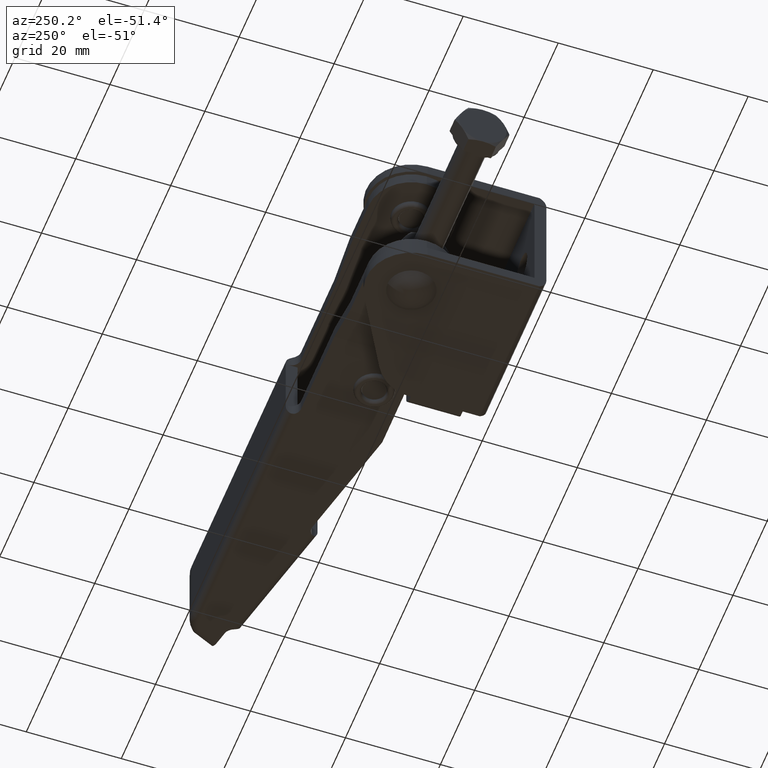
[diagram: clean part render]
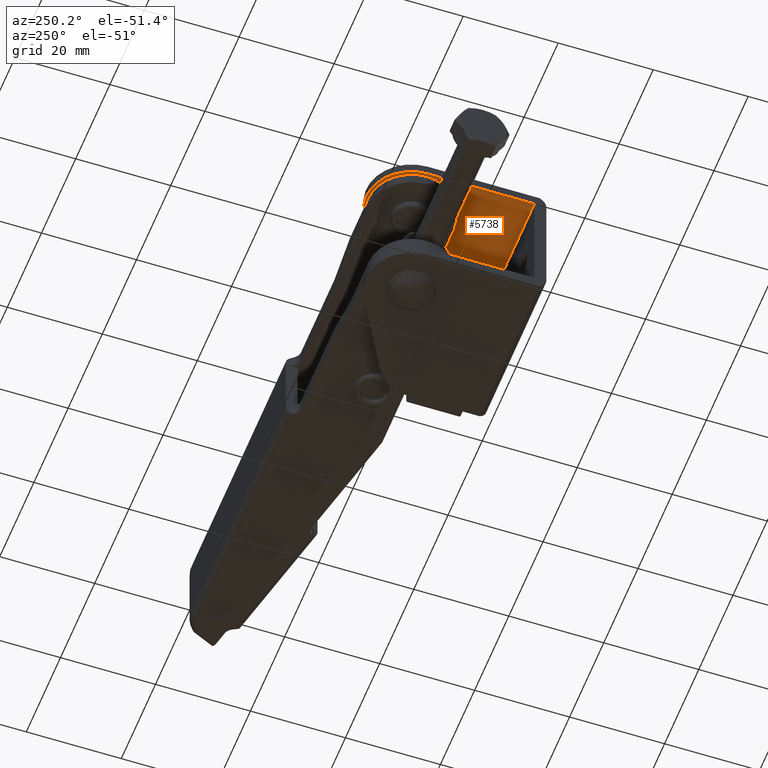
[diagram: same view with one face highlighted and labeled with its STEP entity id]
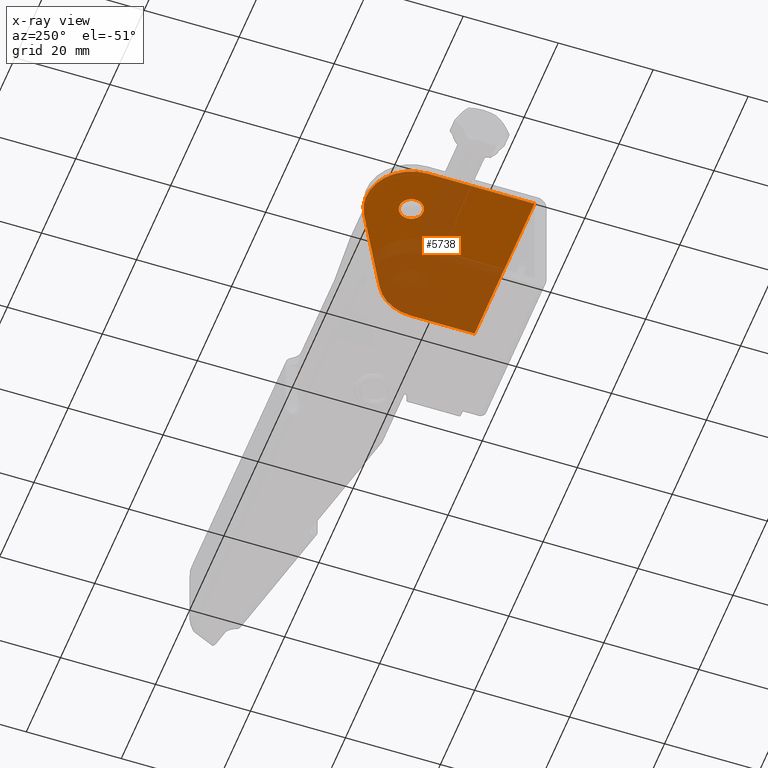
[diagram: x-ray of the same camera — body ghosted, the highlighted face saturated]
A machine part, auxiliary view. The second image highlights one B-rep face of the part: STEP entity #5738.
The next image is the same camera in x-ray: the body ghosted, the highlighted face saturated — about 54% of this face is hidden behind the body in this view.
In plain terms, the highlighted planar face has unit normal (0, 0, -1).
Its self-contained STEP definition (entity closure, byte-faithful):
#52 = DIRECTION ( 'NONE',  ( 0.0000000000000000000, 1.000000000000000000, 0.0000000000000000000 ) ) ;
#236 = EDGE_CURVE ( 'NONE', #5387, #5748, #2113, .T. ) ;
#424 = CARTESIAN_POINT ( 'NONE',  ( -3.342518234999997800, 33.27996761635693400, 11.75000000000000000 ) ) ;
#491 = DIRECTION ( 'NONE',  ( -9.130123557772667100E-017, -0.0000000000000000000, -1.000000000000000000 ) ) ;
#538 = VERTEX_POINT ( 'NONE', #1478 ) ;
#656 = EDGE_CURVE ( 'NONE', #4357, #1506, #1167, .T. ) ;
#725 = PLANE ( 'NONE',  #5575 ) ;
#738 = VECTOR ( 'NONE', #5046, 1000.000000000000000 ) ;
#824 = VERTEX_POINT ( 'NONE', #1712 ) ;
#940 = EDGE_CURVE ( 'NONE', #6481, #4407, #2720, .T. ) ;
#1167 = CIRCLE ( 'NONE', #5828, 2.500000000000000400 ) ;
#1225 = DIRECTION ( 'NONE',  ( -9.130123557772667100E-017, -0.0000000000000000000, -1.000000000000000000 ) ) ;
#1261 = ORIENTED_EDGE ( 'NONE', *, *, #1824, .F. ) ;
#1478 = CARTESIAN_POINT ( 'NONE',  ( 17.50000000000000000, 2.509999999997949000, 11.75000000000000000 ) ) ;
#1506 = VERTEX_POINT ( 'NONE', #6193 ) ;
#1519 = DIRECTION ( 'NONE',  ( 0.8715755365716635300, -0.4902612406154670000, 0.0000000000000000000 ) ) ;
#1520 = AXIS2_PLACEMENT_3D ( 'NONE', #1898, #5731, #2446 ) ;
#1693 = FACE_BOUND ( 'NONE', #4901, .T. ) ;
#1712 = CARTESIAN_POINT ( 'NONE',  ( 17.50000000000000000, 15.99999999902575900, 11.75000000000000000 ) ) ;
#1824 = EDGE_CURVE ( 'NONE', #5387, #538, #5125, .T. ) ;
#1898 = CARTESIAN_POINT ( 'NONE',  ( -8.000000000000000000, 25.00000000000000000, 11.75000000000000000 ) ) ;
#2021 = CARTESIAN_POINT ( 'NONE',  ( -17.50000000000000000, 2.509999999997949000, 11.75000000000000000 ) ) ;
#2113 = LINE ( 'NONE', #3077, #6323 ) ;
#2117 = VECTOR ( 'NONE', #3377, 1000.000000000000000 ) ;
#2446 = DIRECTION ( 'NONE',  ( -1.000000000000000000, 0.0000000000000000000, 0.0000000000000000000 ) ) ;
#2453 = CARTESIAN_POINT ( 'NONE',  ( -8.000000000000000000, 25.00000000000000000, 11.75000000000000000 ) ) ;
#2663 = CARTESIAN_POINT ( 'NONE',  ( 17.50000000000000000, 18.60097000000000000, 11.75000000000000000 ) ) ;
#2720 = LINE ( 'NONE', #424, #3490 ) ;
#2791 = CARTESIAN_POINT ( 'NONE',  ( -3.342518217038310500, 33.27996760295001600, 11.75000000000000000 ) ) ;
#2829 = CARTESIAN_POINT ( 'NONE',  ( 17.50000000000000000, 4.999999992330360900, 11.75000000000000000 ) ) ;
#2839 = CARTESIAN_POINT ( 'NONE',  ( 17.50000000000000000, 18.60097000000000000, 11.75000000000000000 ) ) ;
#2939 = DIRECTION ( 'NONE',  ( 0.0000000000000000000, 1.000000000000000000, 0.0000000000000000000 ) ) ;
#3014 = DIRECTION ( 'NONE',  ( -1.000000000000000000, 0.0000000000000000000, 0.0000000000000000000 ) ) ;
#3077 = CARTESIAN_POINT ( 'NONE',  ( -17.50000000000000000, 18.60097000000000000, 11.75000000000000000 ) ) ;
#3177 = ORIENTED_EDGE ( 'NONE', *, *, #6548, .T. ) ;
#3377 = DIRECTION ( 'NONE',  ( -0.0000000000000000000, -1.000000000000000000, -0.0000000000000000000 ) ) ;
#3485 = CARTESIAN_POINT ( 'NONE',  ( -17.50000000000000000, 24.99999999817272200, 11.75000000000000000 ) ) ;
#3490 = VECTOR ( 'NONE', #1519, 1000.000000000000100 ) ;
#3500 = CARTESIAN_POINT ( 'NONE',  ( -10.50000000000000000, 25.00000000000000000, 11.75000000000000000 ) ) ;
#3662 = EDGE_CURVE ( 'NONE', #1506, #4357, #6192, .T. ) ;
#3693 = AXIS2_PLACEMENT_3D ( 'NONE', #4515, #1225, #5064 ) ;
#3767 = CARTESIAN_POINT ( 'NONE',  ( -8.000000000000000000, 25.00000000000000000, 11.75000000000000000 ) ) ;
#4079 = CARTESIAN_POINT ( 'NONE',  ( 12.65748177635507900, 24.27996759449335700, 11.75000000000000000 ) ) ;
#4329 = DIRECTION ( 'NONE',  ( -1.000000000000000000, 0.0000000000000000000, 0.0000000000000000000 ) ) ;
#4357 = VERTEX_POINT ( 'NONE', #3500 ) ;
#4407 = VERTEX_POINT ( 'NONE', #4079 ) ;
#4429 = AXIS2_PLACEMENT_3D ( 'NONE', #3767, #491, #4329 ) ;
#4444 = VECTOR ( 'NONE', #5378, 1000.000000000000000 ) ;
#4502 = CARTESIAN_POINT ( 'NONE',  ( 0.0000000000000000000, 2.509999999995897700, 11.75000000000000000 ) ) ;
#4515 = CARTESIAN_POINT ( 'NONE',  ( 8.000000000000000000, 16.00000000000000000, 11.75000000000000000 ) ) ;
#4532 = CIRCLE ( 'NONE', #3693, 9.500000000000001800 ) ;
#4577 = CARTESIAN_POINT ( 'NONE',  ( -17.50000000000000000, 2.509999999999999800, 11.75000000000000000 ) ) ;
#4603 = EDGE_CURVE ( 'NONE', #5748, #6481, #4645, .T. ) ;
#4645 = CIRCLE ( 'NONE', #4429, 9.500000000000001800 ) ;
#4901 = EDGE_LOOP ( 'NONE', ( #7098, #5109 ) ) ;
#4988 = ORIENTED_EDGE ( 'NONE', *, *, #5905, .T. ) ;
#5046 = DIRECTION ( 'NONE',  ( 1.000000000000000000, 0.0000000000000000000, 0.0000000000000000000 ) ) ;
#5064 = DIRECTION ( 'NONE',  ( -1.000000000000000000, 0.0000000000000000000, 0.0000000000000000000 ) ) ;
#5109 = ORIENTED_EDGE ( 'NONE', *, *, #656, .F. ) ;
#5125 = LINE ( 'NONE', #4502, #738 ) ;
#5131 = ORIENTED_EDGE ( 'NONE', *, *, #940, .T. ) ;
#5378 = DIRECTION ( 'NONE',  ( -0.0000000000000000000, -1.000000000000000000, -0.0000000000000000000 ) ) ;
#5387 = VERTEX_POINT ( 'NONE', #2021 ) ;
#5575 = AXIS2_PLACEMENT_3D ( 'NONE', #4577, #6217, #2939 ) ;
#5731 = DIRECTION ( 'NONE',  ( 0.0000000000000000000, 0.0000000000000000000, -1.000000000000000000 ) ) ;
#5738 = ADVANCED_FACE ( 'NONE', ( #6077, #1693 ), #725, .T. ) ;
#5748 = VERTEX_POINT ( 'NONE', #3485 ) ;
#5760 = ORIENTED_EDGE ( 'NONE', *, *, #6276, .T. ) ;
#5828 = AXIS2_PLACEMENT_3D ( 'NONE', #2453, #6294, #3014 ) ;
#5892 = LINE ( 'NONE', #2663, #4444 ) ;
#5905 = EDGE_CURVE ( 'NONE', #6341, #538, #6498, .T. ) ;
#5994 = ORIENTED_EDGE ( 'NONE', *, *, #236, .T. ) ;
#6077 = FACE_OUTER_BOUND ( 'NONE', #6320, .T. ) ;
#6192 = CIRCLE ( 'NONE', #1520, 2.500000000000000400 ) ;
#6193 = CARTESIAN_POINT ( 'NONE',  ( -5.500000000000000000, 25.00000000000000000, 11.75000000000000000 ) ) ;
#6217 = DIRECTION ( 'NONE',  ( 0.0000000000000000000, 0.0000000000000000000, -1.000000000000000000 ) ) ;
#6276 = EDGE_CURVE ( 'NONE', #824, #6341, #5892, .T. ) ;
#6294 = DIRECTION ( 'NONE',  ( 0.0000000000000000000, 0.0000000000000000000, -1.000000000000000000 ) ) ;
#6320 = EDGE_LOOP ( 'NONE', ( #4988, #1261, #5994, #6605, #5131, #3177, #5760 ) ) ;
#6323 = VECTOR ( 'NONE', #52, 1000.000000000000000 ) ;
#6341 = VERTEX_POINT ( 'NONE', #2829 ) ;
#6481 = VERTEX_POINT ( 'NONE', #2791 ) ;
#6498 = LINE ( 'NONE', #2839, #2117 ) ;
#6548 = EDGE_CURVE ( 'NONE', #4407, #824, #4532, .T. ) ;
#6605 = ORIENTED_EDGE ( 'NONE', *, *, #4603, .T. ) ;
#7098 = ORIENTED_EDGE ( 'NONE', *, *, #3662, .F. ) ;